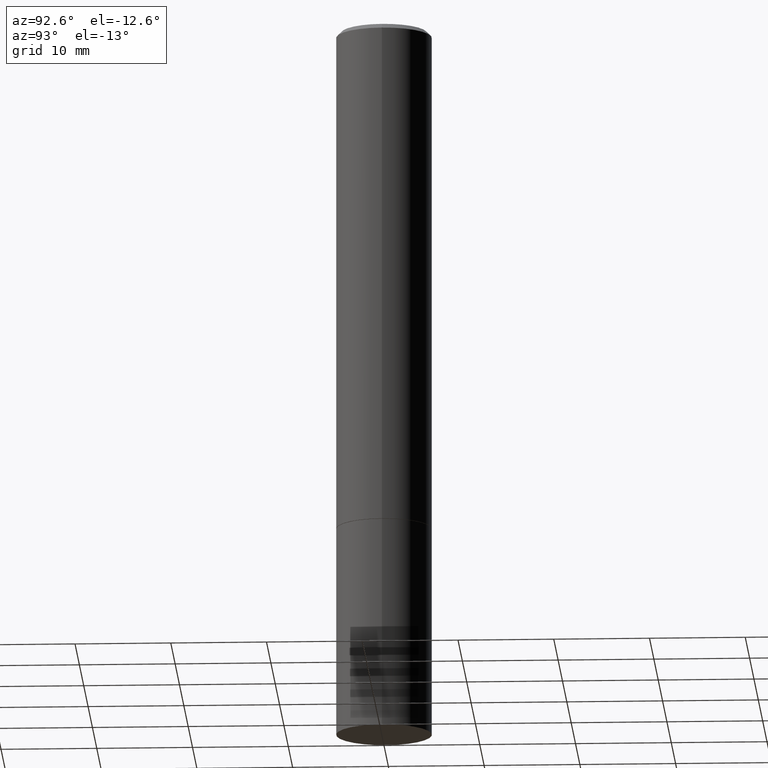
[diagram: clean part render]
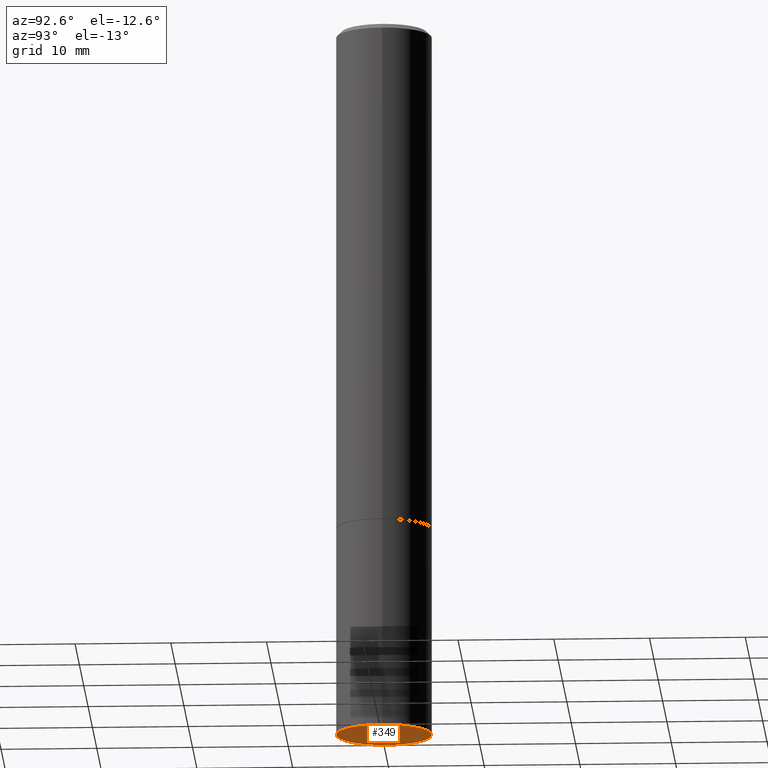
[diagram: same view with one face highlighted and labeled with its STEP entity id]
A machine part, auxiliary view. The second image highlights one B-rep face of the part: STEP entity #349.
In plain terms, the highlighted planar face has unit normal (0, -0, -1).
Its self-contained STEP definition (entity closure, byte-faithful):
#10 = CARTESIAN_POINT ( 'NONE',  ( 7.220980290903470182E-29, -1.030964609733603853E-14, -2.952799999999999869 ) ) ;
#20 = CARTESIAN_POINT ( 'NONE',  ( 1.374596203102613789E-15, 0.1968499999999896999, -2.952800000000000313 ) ) ;
#27 = ORIENTED_EDGE ( 'NONE', *, *, #132, .F. ) ;
#41 = CARTESIAN_POINT ( 'NONE',  ( 7.220980290903470182E-29, -1.030964609733603853E-14, -2.952799999999999869 ) ) ;
#46 = FACE_OUTER_BOUND ( 'NONE', #169, .T. ) ;
#52 = PLANE ( 'NONE',  #225 ) ;
#77 = VERTEX_POINT ( 'NONE', #181 ) ;
#132 = EDGE_CURVE ( 'NONE', #350, #77, #133, .T. ) ;
#133 = CIRCLE ( 'NONE', #263, 0.1968500000000000250 ) ;
#163 = DIRECTION ( 'NONE',  ( -1.000000000000000000, 6.982962677686265922E-15, -4.876176775795935793E-29 ) ) ;
#165 = CARTESIAN_POINT ( 'NONE',  ( 0.1968500000000000250, -1.168424230043858014E-14, -2.952799999999999869 ) ) ;
#169 = EDGE_LOOP ( 'NONE', ( #27, #235 ) ) ;
#181 = CARTESIAN_POINT ( 'NONE',  ( -0.1968500000000000250, -7.398956728206258518E-15, -2.952799999999999869 ) ) ;
#191 = DIRECTION ( 'NONE',  ( -2.445468806185136597E-29, 3.491481338843145583E-15, 1.000000000000000000 ) ) ;
#194 = DIRECTION ( 'NONE',  ( 2.438088387897960049E-29, -3.491481338843145188E-15, -1.000000000000000000 ) ) ;
#206 = CIRCLE ( 'NONE', #290, 0.1968500000000000250 ) ;
#215 = DIRECTION ( 'NONE',  ( 1.000000000000000000, -6.982962677686267499E-15, 0.000000000000000000 ) ) ;
#225 = AXIS2_PLACEMENT_3D ( 'NONE', #20, #194, #163 ) ;
#235 = ORIENTED_EDGE ( 'NONE', *, *, #272, .F. ) ;
#246 = DIRECTION ( 'NONE',  ( -2.445468806185136597E-29, 3.491481338843145583E-15, 1.000000000000000000 ) ) ;
#262 = DIRECTION ( 'NONE',  ( 1.000000000000000000, -6.982962677686267499E-15, 0.000000000000000000 ) ) ;
#263 = AXIS2_PLACEMENT_3D ( 'NONE', #41, #191, #262 ) ;
#272 = EDGE_CURVE ( 'NONE', #77, #350, #206, .T. ) ;
#290 = AXIS2_PLACEMENT_3D ( 'NONE', #10, #246, #215 ) ;
#349 = ADVANCED_FACE ( 'NONE', ( #46 ), #52, .T. ) ;
#350 = VERTEX_POINT ( 'NONE', #165 ) ;